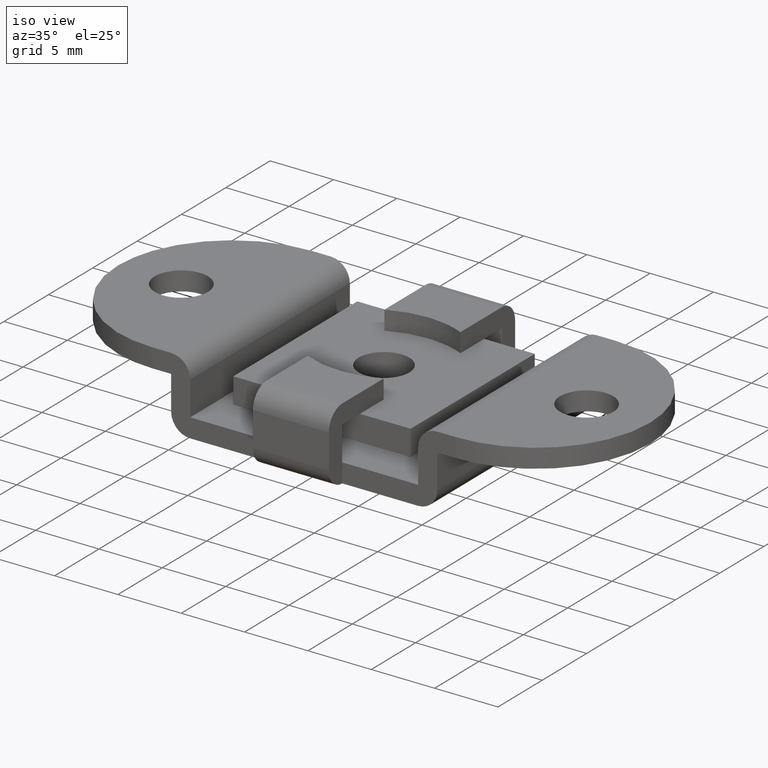
[diagram: clean part render]
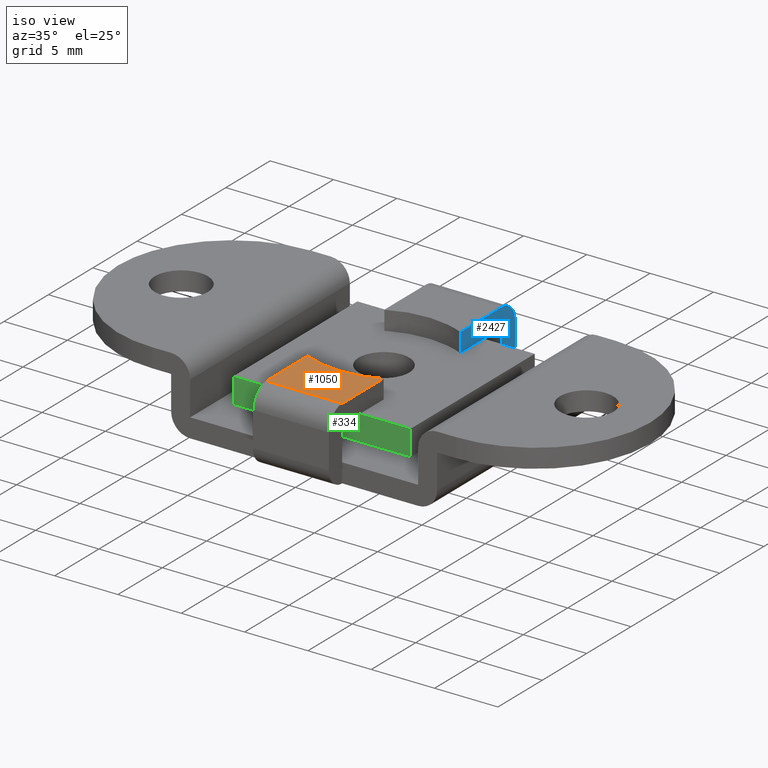
[diagram: same view with three faces highlighted in distinct colors, each labeled with its STEP entity id]
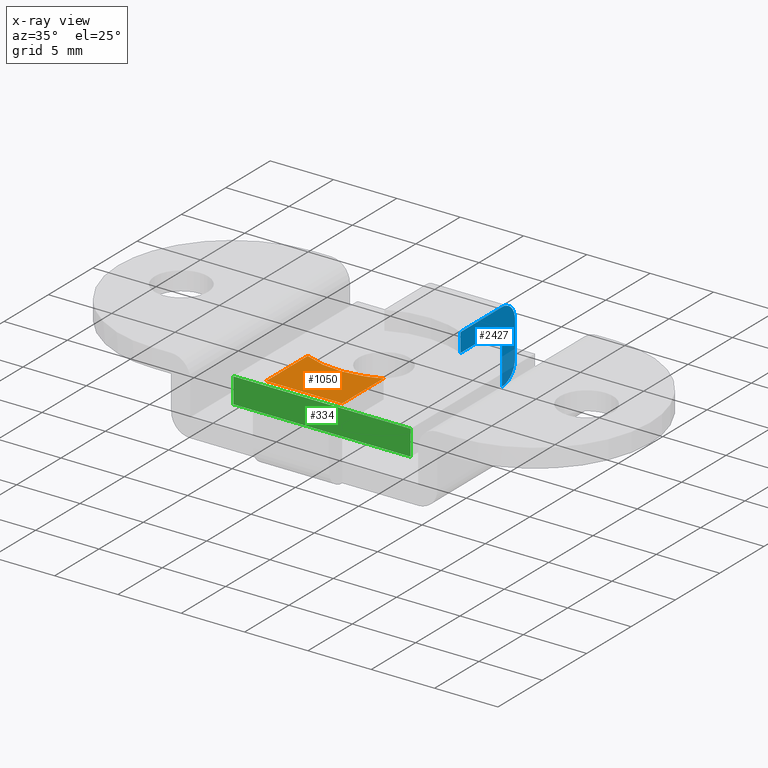
[diagram: x-ray of the same camera — body ghosted, the three highlighted faces saturated]
A machine part, iso view with three faces highlighted in distinct colors.
The next image is the same camera in x-ray (body ghosted, the three faces saturated) — at least one of them is partly hidden behind the body in this view.
Their STEP definitions:

[orange] entity #1050 — the highlighted face is a freeform B-spline surface patch.
#1008=CARTESIAN_POINT('',(3.299708059193319,-9.233538626544180,5.700000000000000));
#1009=CARTESIAN_POINT('',(-3.299708220126259,-9.233538626544180,5.700000000000000));
#1010=CARTESIAN_POINT('',(3.299708059193319,-4.091013087768143,5.700000000000000));
#1011=CARTESIAN_POINT('',(-3.299708220126259,-4.091013087768143,5.700000000000000));
#1012=B_SPLINE_SURFACE_WITH_KNOTS('',1,1,((#1008,#1010),(#1009,#1011)),.UNSPECIFIED.,.F.,.F.,.U.,(2,2),(2,2),(0.0,6.599416279319579),(0.0,5.142525538776036),.UNSPECIFIED.);
#1013=CARTESIAN_POINT('',(-3.000007337778450,-4.324551839717615,5.700000000000000));
#1014=VERTEX_POINT('',#1013);
#1015=CARTESIAN_POINT('',(-3.0,-9.0,5.700000000000000));
#1016=VERTEX_POINT('',#1015);
#1017=CARTESIAN_POINT('',(-3.000007337778450,-4.324551839717615,5.700000000000000));
#1018=CARTESIAN_POINT('',(-3.0,-9.0,5.700000000000000));
#1019=QUASI_UNIFORM_CURVE('',1,(#1017,#1018),.UNSPECIFIED.,.F.,.U.);
#1020=EDGE_CURVE('',#1014,#1016,#1019,.T.);
#1021=ORIENTED_EDGE('',*,*,#1020,.T.);
#1022=CARTESIAN_POINT('',(3.0,-9.0,5.700000000000000));
#1023=VERTEX_POINT('',#1022);
#1024=CARTESIAN_POINT('',(-3.0,-9.0,5.700000000000000));
#1025=CARTESIAN_POINT('',(3.0,-9.0,5.700000000000000));
#1026=QUASI_UNIFORM_CURVE('',1,(#1024,#1025),.UNSPECIFIED.,.F.,.U.);
#1027=EDGE_CURVE('',#1016,#1023,#1026,.T.);
#1028=ORIENTED_EDGE('',*,*,#1027,.T.);
#1029=CARTESIAN_POINT('',(3.000007337778445,-4.324551839717620,5.700000000000000));
#1030=VERTEX_POINT('',#1029);
#1031=CARTESIAN_POINT('',(3.000007337778445,-4.324551839717620,5.700000000000000));
#1032=CARTESIAN_POINT('',(3.0,-9.0,5.700000000000000));
#1033=QUASI_UNIFORM_CURVE('',1,(#1031,#1032),.UNSPECIFIED.,.F.,.U.);
#1034=EDGE_CURVE('',#1030,#1023,#1033,.T.);
#1035=ORIENTED_EDGE('',*,*,#1034,.F.);
#1036=CARTESIAN_POINT('',(-3.000007337778450,-4.324551839717615,5.700000000000000));
#1037=CARTESIAN_POINT('',(-2.693631010072378,-4.469898060036488,5.700000000000008));
#1038=CARTESIAN_POINT('',(-2.074792012547756,-4.710070041711906,5.699999999999976));
#1039=CARTESIAN_POINT('',(-1.144581838872321,-4.926289100874306,5.700000000000067));
#1040=CARTESIAN_POINT('',(-0.162277242083104,-5.021763870141661,5.699999999999898));
#1041=CARTESIAN_POINT('',(0.808679700549544,-4.978063108727382,5.700000000000033));
#1042=CARTESIAN_POINT('',(1.905129199045771,-4.766825545888099,5.699999999999994));
#1043=CARTESIAN_POINT('',(2.606104752003067,-4.511453594519309,5.699999999999980));
#1044=CARTESIAN_POINT('',(3.000007337778445,-4.324551839717620,5.700000000000000));
#1045=B_SPLINE_CURVE_WITH_KNOTS('',3,(#1036,#1037,#1038,#1039,#1040,#1041,#1042,#1043,#1044),.UNSPECIFIED.,.F.,.U.,(4,1,1,1,1,1,4),(8.522579E-009,1.017313250152049,1.986189314300255,2.858181674090655,3.972372607343111,4.892807063198950,6.200783233671871),.UNSPECIFIED.);
#1046=EDGE_CURVE('',#1014,#1030,#1045,.T.);
#1047=ORIENTED_EDGE('',*,*,#1046,.F.);
#1048=EDGE_LOOP('',(#1021,#1028,#1035,#1047));
#1049=FACE_OUTER_BOUND('',#1048,.T.);
#1050=ADVANCED_FACE('',(#1049),#1012,.F.);

[blue] entity #2427 — the highlighted face is a freeform B-spline surface patch.
#1352=CARTESIAN_POINT('',(3.000007337778445,4.324551839717615,5.700000000000000));
#1353=VERTEX_POINT('',#1352);
#1354=CARTESIAN_POINT('',(3.0,9.0,5.700000000000000));
#1355=VERTEX_POINT('',#1354);
#1356=CARTESIAN_POINT('',(3.000007337778445,4.324551839717615,5.700000000000000));
#1357=CARTESIAN_POINT('',(3.0,9.0,5.700000000000000));
#1358=QUASI_UNIFORM_CURVE('',1,(#1356,#1357),.UNSPECIFIED.,.F.,.U.);
#1359=EDGE_CURVE('',#1353,#1355,#1358,.T.);
#1841=CARTESIAN_POINT('',(3.0,9.0,0.0));
#1842=VERTEX_POINT('',#1841);
#2128=CARTESIAN_POINT('',(3.0,9.0,1.499999999999900));
#2129=VERTEX_POINT('',#2128);
#2130=CARTESIAN_POINT('',(3.0,9.0,0.0));
#2131=CARTESIAN_POINT('',(3.0,9.0,1.499999999999900));
#2132=QUASI_UNIFORM_CURVE('',1,(#2130,#2131),.UNSPECIFIED.,.F.,.U.);
#2133=EDGE_CURVE('',#1842,#2129,#2132,.T.);
#2206=CARTESIAN_POINT('',(3.0,10.500000000000000,1.500000000000000));
#2207=VERTEX_POINT('',#2206);
#2208=CARTESIAN_POINT('',(3.0,9.0,0.0));
#2209=CARTESIAN_POINT('',(3.000000000000001,9.134992126508946,-0.000040323706134));
#2210=CARTESIAN_POINT('',(3.000000000000001,9.404954708274156,0.036682435838054));
#2211=CARTESIAN_POINT('',(2.999999999999993,9.757821645251809,0.187915647031501));
#2212=CARTESIAN_POINT('',(3.000000000000007,10.018180903167670,0.386080241014243));
#2213=CARTESIAN_POINT('',(2.999999999999994,10.219367652582140,0.610796478327798));
#2214=CARTESIAN_POINT('',(2.999999999999995,10.378074072425109,0.875541593733773));
#2215=CARTESIAN_POINT('',(3.000000000000034,10.478854099417150,1.187069762417795));
#2216=CARTESIAN_POINT('',(2.999999999999947,10.500009056945510,1.401825933538030));
#2217=CARTESIAN_POINT('',(3.0,10.500000000000000,1.500000000000000));
#2218=B_SPLINE_CURVE_WITH_KNOTS('',3,(#2208,#2209,#2210,#2211,#2212,#2213,#2214,#2215,#2216,#2217),.UNSPECIFIED.,.F.,.U.,(4,1,1,1,1,1,1,4),(0.000000052720840,0.404968350574827,0.809953102175606,1.141297109189707,1.380582247977241,1.711931886899523,2.061685967823627,2.356209274317259),.UNSPECIFIED.);
#2219=EDGE_CURVE('',#1842,#2207,#2218,.T.);
#2274=CARTESIAN_POINT('',(3.0,10.500000000000000,4.200000000000000));
#2275=VERTEX_POINT('',#2274);
#2276=CARTESIAN_POINT('',(3.0,10.500000000000000,4.200000000000000));
#2277=CARTESIAN_POINT('',(2.999999999999998,10.500018163720460,4.310446531244033));
#2278=CARTESIAN_POINT('',(3.000000000000004,10.478205330418300,4.506783118770975));
#2279=CARTESIAN_POINT('',(2.999999999999996,10.372252664535980,4.841467557760128));
#2280=CARTESIAN_POINT('',(3.000000000000008,10.182022397515890,5.154479973700603));
#2281=CARTESIAN_POINT('',(3.000000000000006,9.905675094159516,5.411107172316409));
#2282=CARTESIAN_POINT('',(2.999999999999973,9.612696962591985,5.581869455490923));
#2283=CARTESIAN_POINT('',(3.000000000000081,9.312932205082516,5.678856514954954));
#2284=CARTESIAN_POINT('',(2.999999999999894,9.098173663363969,5.700008684551209));
#2285=CARTESIAN_POINT('',(3.0,9.0,5.700000000000000));
#2286=B_SPLINE_CURVE_WITH_KNOTS('',3,(#2276,#2277,#2278,#2279,#2280,#2281,#2282,#2283,#2284,#2285),.UNSPECIFIED.,.F.,.U.,(4,1,1,1,1,1,1,4),(0.000000052721116,0.331338341887698,0.589052363013755,1.049250564076293,1.417397069882497,1.711931886899415,2.061685967823574,2.356209274317278),.UNSPECIFIED.);
#2287=EDGE_CURVE('',#2275,#1355,#2286,.T.);
#2302=CARTESIAN_POINT('',(3.0,9.0,4.200000000000000));
#2303=VERTEX_POINT('',#2302);
#2311=CARTESIAN_POINT('',(3.000007337778445,4.324551839717615,4.200000000000000));
#2312=VERTEX_POINT('',#2311);
#2313=CARTESIAN_POINT('',(3.000007337778445,4.324551839717615,4.200000000000000));
#2314=CARTESIAN_POINT('',(3.0,9.0,4.200000000000000));
#2315=QUASI_UNIFORM_CURVE('',1,(#2313,#2314),.UNSPECIFIED.,.F.,.U.);
#2316=EDGE_CURVE('',#2312,#2303,#2315,.T.);
#2360=CARTESIAN_POINT('',(3.000007337778445,4.324551839717615,4.200000000000000));
#2361=CARTESIAN_POINT('',(3.000007337778445,4.324551839717615,5.700000000000000));
#2362=QUASI_UNIFORM_CURVE('',1,(#2360,#2361),.UNSPECIFIED.,.F.,.U.);
#2363=EDGE_CURVE('',#2312,#1353,#2362,.T.);
#2379=CARTESIAN_POINT('',(3.0,10.500000000000000,4.200000000000000));
#2380=CARTESIAN_POINT('',(3.0,10.500000000000000,1.500000000000000));
#2381=QUASI_UNIFORM_CURVE('',1,(#2379,#2380),.UNSPECIFIED.,.F.,.U.);
#2382=EDGE_CURVE('',#2275,#2207,#2381,.T.);
#2408=CARTESIAN_POINT('',(2.999999999999760,4.016088216080727,-0.284714988952294));
#2409=CARTESIAN_POINT('',(2.999999999999760,4.016088216080727,5.984715141838209));
#2410=CARTESIAN_POINT('',(2.999999999999760,10.808463789275320,-0.284714988952294));
#2411=CARTESIAN_POINT('',(2.999999999999760,10.808463789275320,5.984715141838209));
#2412=B_SPLINE_SURFACE_WITH_KNOTS('',1,1,((#2408,#2410),(#2409,#2411)),.UNSPECIFIED.,.F.,.F.,.U.,(2,2),(2,2),(0.0,6.269430130790503),(0.0,6.792375573194591),.UNSPECIFIED.);
#2413=ORIENTED_EDGE('',*,*,#2382,.F.);
#2414=ORIENTED_EDGE('',*,*,#2287,.T.);
#2415=ORIENTED_EDGE('',*,*,#1359,.F.);
#2416=ORIENTED_EDGE('',*,*,#2363,.F.);
#2417=ORIENTED_EDGE('',*,*,#2316,.T.);
#2418=CARTESIAN_POINT('',(3.0,9.0,4.200000000000000));
#2419=CARTESIAN_POINT('',(3.0,9.0,1.499999999999900));
#2420=QUASI_UNIFORM_CURVE('',1,(#2418,#2419),.UNSPECIFIED.,.F.,.U.);
#2421=EDGE_CURVE('',#2303,#2129,#2420,.T.);
#2422=ORIENTED_EDGE('',*,*,#2421,.T.);
#2423=ORIENTED_EDGE('',*,*,#2133,.F.);
#2424=ORIENTED_EDGE('',*,*,#2219,.T.);
#2425=EDGE_LOOP('',(#2413,#2414,#2415,#2416,#2417,#2422,#2423,#2424));
#2426=FACE_OUTER_BOUND('',#2425,.T.);
#2427=ADVANCED_FACE('',(#2426),#2412,.F.);

[green] entity #334 — the highlighted face is a freeform B-spline surface patch.
#225=CARTESIAN_POINT('',(7.0,-7.0,2.200000000000000));
#226=VERTEX_POINT('',#225);
#232=CARTESIAN_POINT('',(-7.0,-7.0,2.200000000000000));
#233=VERTEX_POINT('',#232);
#234=CARTESIAN_POINT('',(-7.0,-7.0,2.200000000000000));
#235=CARTESIAN_POINT('',(7.0,-7.0,2.200000000000000));
#236=QUASI_UNIFORM_CURVE('',1,(#234,#235),.UNSPECIFIED.,.F.,.U.);
#237=EDGE_CURVE('',#233,#226,#236,.T.);
#269=CARTESIAN_POINT('',(-7.0,-7.0,4.199999999999870));
#270=VERTEX_POINT('',#269);
#276=CARTESIAN_POINT('',(7.0,-7.0,4.199999999999870));
#277=VERTEX_POINT('',#276);
#278=CARTESIAN_POINT('',(-7.0,-7.0,4.199999999999870));
#279=CARTESIAN_POINT('',(7.0,-7.0,4.199999999999870));
#280=QUASI_UNIFORM_CURVE('',1,(#278,#279),.UNSPECIFIED.,.F.,.U.);
#281=EDGE_CURVE('',#270,#277,#280,.T.);
#311=CARTESIAN_POINT('',(7.0,-7.0,4.199999999999870));
#312=CARTESIAN_POINT('',(7.0,-7.0,2.200000000000000));
#313=QUASI_UNIFORM_CURVE('',1,(#311,#312),.UNSPECIFIED.,.F.,.U.);
#314=EDGE_CURVE('',#277,#226,#313,.T.);
#319=CARTESIAN_POINT('',(-7.699299972865284,-7.0,2.100100003876395));
#320=CARTESIAN_POINT('',(-7.699299972865284,-7.0,4.299900049767655));
#321=CARTESIAN_POINT('',(7.699300348374545,-7.0,2.100100003876395));
#322=CARTESIAN_POINT('',(7.699300348374545,-7.0,4.299900049767655));
#323=B_SPLINE_SURFACE_WITH_KNOTS('',1,1,((#319,#321),(#320,#322)),.UNSPECIFIED.,.F.,.F.,.U.,(2,2),(2,2),(0.0,2.199800045891260),(0.0,15.398600321239829),.UNSPECIFIED.);
#324=ORIENTED_EDGE('',*,*,#237,.T.);
#325=ORIENTED_EDGE('',*,*,#314,.F.);
#326=ORIENTED_EDGE('',*,*,#281,.F.);
#327=CARTESIAN_POINT('',(-7.0,-7.0,4.199999999999870));
#328=CARTESIAN_POINT('',(-7.0,-7.0,2.200000000000000));
#329=QUASI_UNIFORM_CURVE('',1,(#327,#328),.UNSPECIFIED.,.F.,.U.);
#330=EDGE_CURVE('',#270,#233,#329,.T.);
#331=ORIENTED_EDGE('',*,*,#330,.T.);
#332=EDGE_LOOP('',(#324,#325,#326,#331));
#333=FACE_OUTER_BOUND('',#332,.T.);
#334=ADVANCED_FACE('',(#333),#323,.F.);